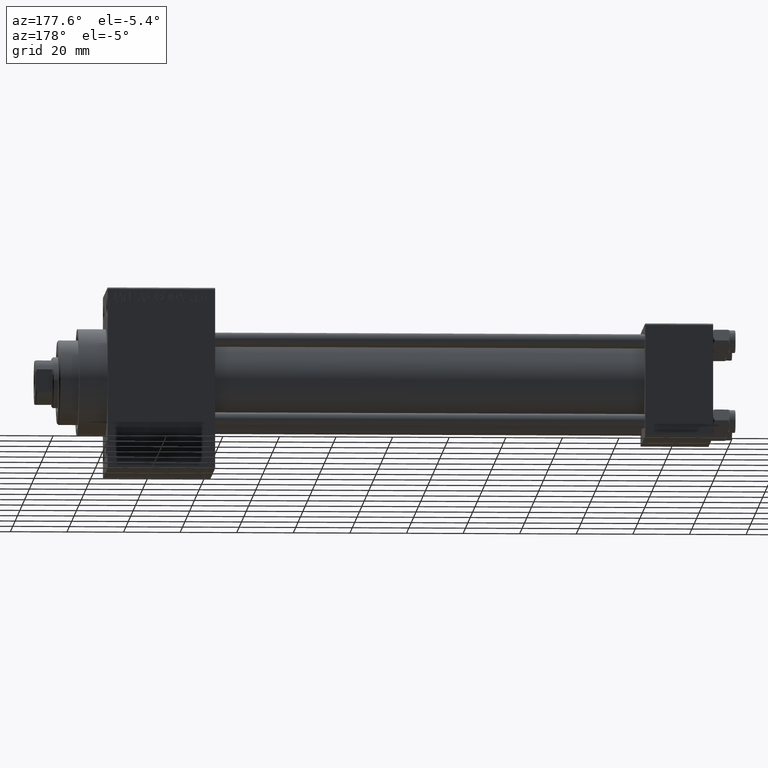
[diagram: clean part render]
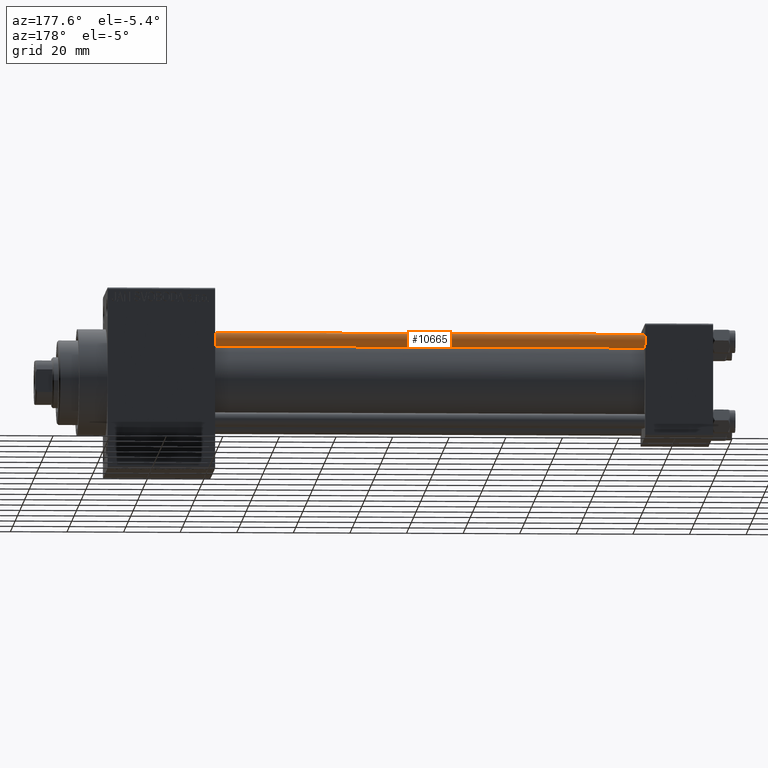
[diagram: same view with one face highlighted and labeled with its STEP entity id]
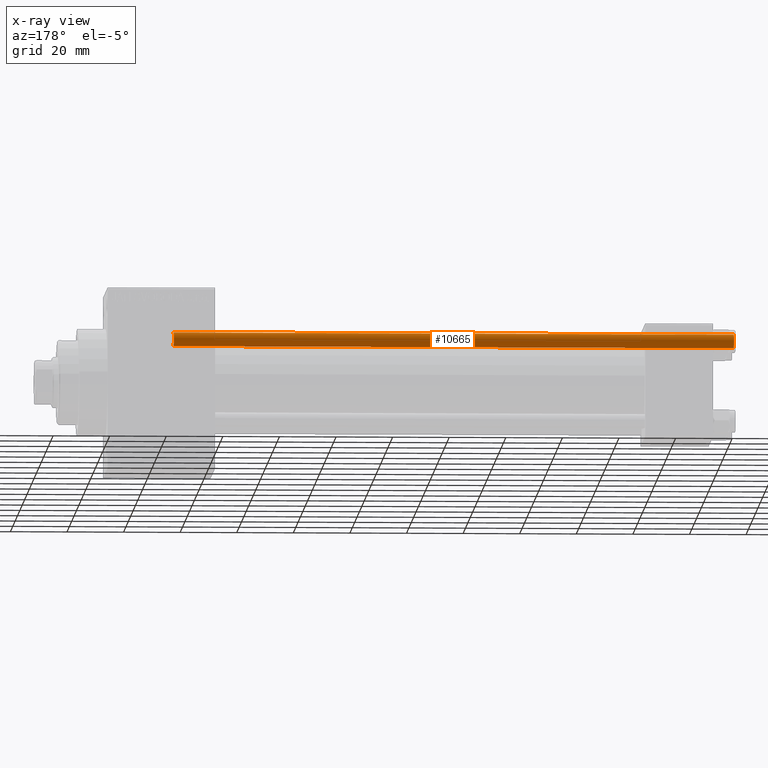
[diagram: x-ray of the same camera — body ghosted, the highlighted face saturated]
A machine part, auxiliary view. The second image highlights one B-rep face of the part: STEP entity #10665.
The next image is the same camera in x-ray: the body ghosted, the highlighted face saturated — about 0% of this face is hidden behind the body in this view.
In plain terms, the highlighted cylindrical surface (edge-blend (fillet) strip) has radius 2.5 mm, axis along (-1, -0, 0).
Its self-contained STEP definition (entity closure, byte-faithful):
#1248 = EDGE_CURVE ( 'NONE', #45628, #2572, #24552, .T. ) ;
#1812 = FACE_OUTER_BOUND ( 'NONE', #26155, .T. ) ;
#2173 = VECTOR ( 'NONE', #9703, 1000.000000000000000 ) ;
#2273 = CARTESIAN_POINT ( 'NONE',  ( 0.000000000000000000, 0.000000000000000000, 199.0000000000000000 ) ) ;
#2572 = VERTEX_POINT ( 'NONE', #39324 ) ;
#3190 = CARTESIAN_POINT ( 'NONE',  ( 0.000000000000000000, 0.000000000000000000, 0.5000000000000004441 ) ) ;
#4407 = ORIENTED_EDGE ( 'NONE', *, *, #1248, .T. ) ;
#5751 = VECTOR ( 'NONE', #11266, 1000.000000000000000 ) ;
#6668 = EDGE_CURVE ( 'NONE', #45628, #30332, #21970, .T. ) ;
#7080 = AXIS2_PLACEMENT_3D ( 'NONE', #35043, #9113, #28130 ) ;
#9113 = DIRECTION ( 'NONE',  ( 0.000000000000000000, 0.000000000000000000, -1.000000000000000000 ) ) ;
#9703 = DIRECTION ( 'NONE',  ( -0.000000000000000000, -0.000000000000000000, -1.000000000000000000 ) ) ;
#10665 = ADVANCED_FACE ( 'NONE', ( #1812 ), #12759, .T. ) ;
#11266 = DIRECTION ( 'NONE',  ( -0.000000000000000000, -0.000000000000000000, -1.000000000000000000 ) ) ;
#12759 = CYLINDRICAL_SURFACE ( 'NONE', #40858, 2.500000000000000000 ) ;
#13875 = ORIENTED_EDGE ( 'NONE', *, *, #6668, .F. ) ;
#15553 = CARTESIAN_POINT ( 'NONE',  ( -2.500000000000000000, 0.000000000000000000, 198.5000000000000284 ) ) ;
#19820 = AXIS2_PLACEMENT_3D ( 'NONE', #3190, #43668, #32703 ) ;
#21097 = CARTESIAN_POINT ( 'NONE',  ( 2.500000000000000000, 3.061616997868383141E-16, 199.0000000000000000 ) ) ;
#21794 = EDGE_CURVE ( 'NONE', #2572, #44063, #32058, .T. ) ;
#21970 = LINE ( 'NONE', #29583, #5751 ) ;
#23401 = ORIENTED_EDGE ( 'NONE', *, *, #21794, .T. ) ;
#23621 = CIRCLE ( 'NONE', #19820, 2.500000000000000000 ) ;
#24056 = CARTESIAN_POINT ( 'NONE',  ( 2.500000000000000000, 3.061616997868383141E-16, 0.5000000000000004441 ) ) ;
#24552 = CIRCLE ( 'NONE', #7080, 2.500000000000000000 ) ;
#26155 = EDGE_LOOP ( 'NONE', ( #4407, #23401, #38862, #13875 ) ) ;
#28130 = DIRECTION ( 'NONE',  ( 1.000000000000000000, 0.000000000000000000, 0.000000000000000000 ) ) ;
#29583 = CARTESIAN_POINT ( 'NONE',  ( -2.500000000000000000, 0.000000000000000000, 199.0000000000000000 ) ) ;
#30332 = VERTEX_POINT ( 'NONE', #37495 ) ;
#31322 = EDGE_CURVE ( 'NONE', #44063, #30332, #23621, .T. ) ;
#32058 = LINE ( 'NONE', #21097, #2173 ) ;
#32703 = DIRECTION ( 'NONE',  ( 1.000000000000000000, 0.000000000000000000, 0.000000000000000000 ) ) ;
#34637 = DIRECTION ( 'NONE',  ( -1.000000000000000000, 0.000000000000000000, 0.000000000000000000 ) ) ;
#35043 = CARTESIAN_POINT ( 'NONE',  ( 0.000000000000000000, 0.000000000000000000, 198.5000000000000284 ) ) ;
#37495 = CARTESIAN_POINT ( 'NONE',  ( -2.500000000000000000, 0.000000000000000000, 0.5000000000000004441 ) ) ;
#38862 = ORIENTED_EDGE ( 'NONE', *, *, #31322, .T. ) ;
#39324 = CARTESIAN_POINT ( 'NONE',  ( 2.500000000000000000, 3.061616997868383141E-16, 198.5000000000000284 ) ) ;
#40858 = AXIS2_PLACEMENT_3D ( 'NONE', #2273, #42498, #34637 ) ;
#42498 = DIRECTION ( 'NONE',  ( -0.000000000000000000, -0.000000000000000000, -1.000000000000000000 ) ) ;
#43668 = DIRECTION ( 'NONE',  ( -0.000000000000000000, -0.000000000000000000, 1.000000000000000000 ) ) ;
#44063 = VERTEX_POINT ( 'NONE', #24056 ) ;
#45628 = VERTEX_POINT ( 'NONE', #15553 ) ;